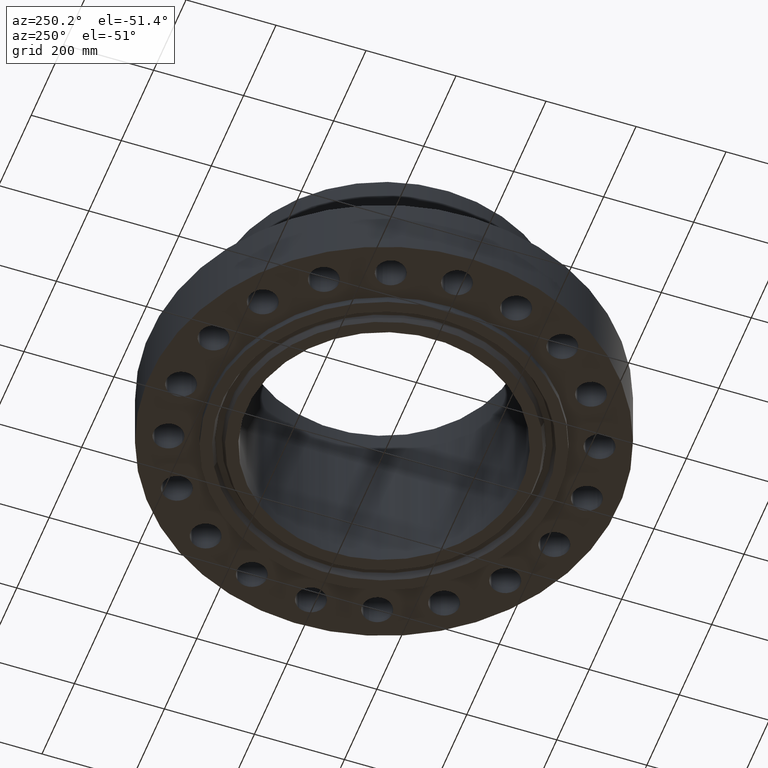
[diagram: clean part render]
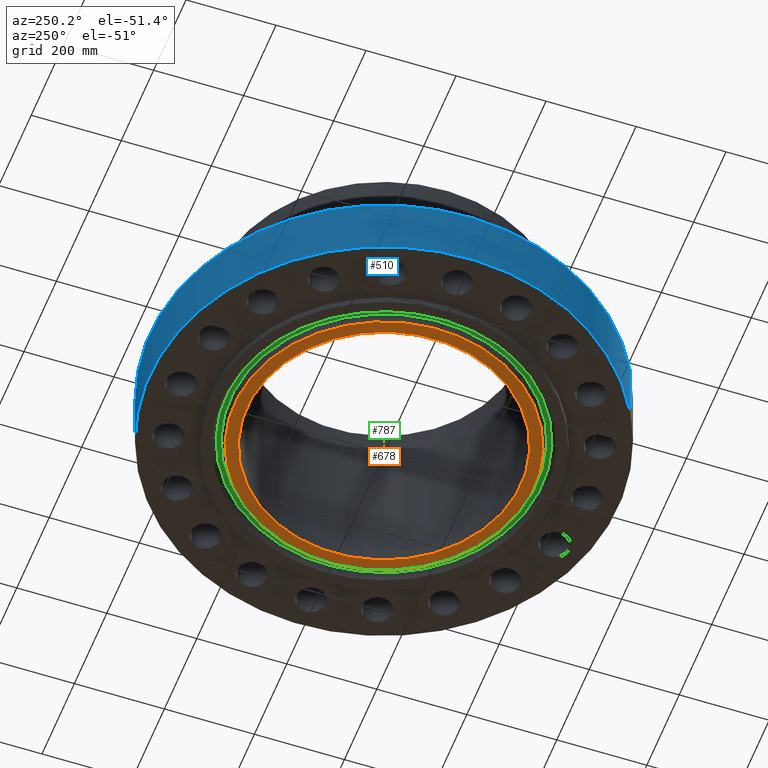
[diagram: same view with three faces highlighted in distinct colors, each labeled with its STEP entity id]
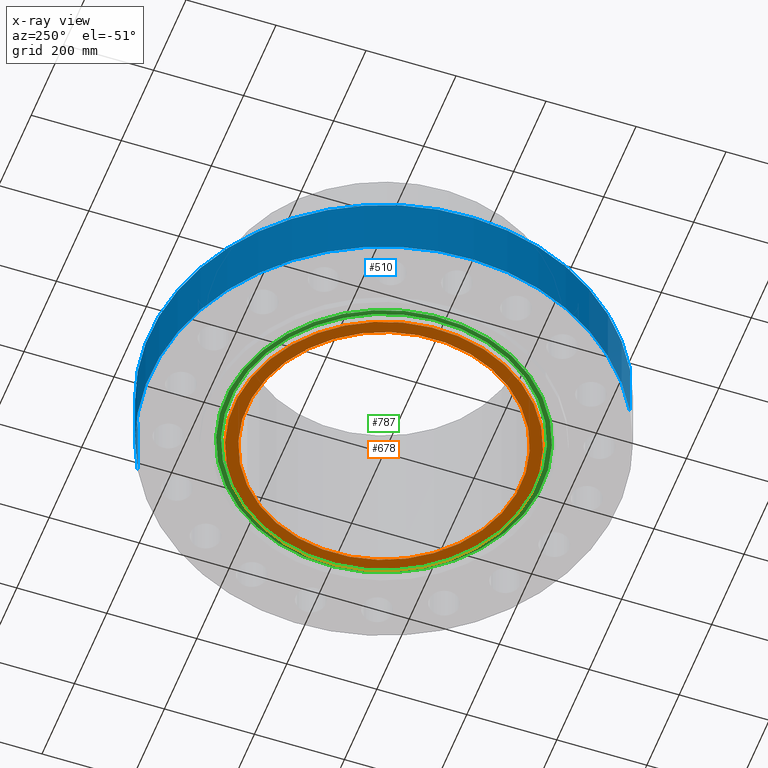
[diagram: x-ray of the same camera — body ghosted, the three highlighted faces saturated]
A machine part, auxiliary view with three faces highlighted in distinct colors.
The next image is the same camera in x-ray (body ghosted, the three faces saturated) — at least one of them is partly hidden behind the body in this view.
Their STEP definitions:

[orange] entity #678 — the highlighted planar face has unit normal (0, 0, -1).
#622=AXIS2_PLACEMENT_3D('Circle Axis2P3D',#620,#621,$) ;
#641=AXIS2_PLACEMENT_3D('Circle Axis2P3D',#639,#640,$) ;
#654=AXIS2_PLACEMENT_3D('Plane Axis2P3D',#651,#652,#653) ;
#658=AXIS2_PLACEMENT_3D('Circle Axis2P3D',#656,#657,$) ;
#667=AXIS2_PLACEMENT_3D('Circle Axis2P3D',#665,#666,$) ;
#617=CARTESIAN_POINT('Vertex',(5.75310646327,10.5309907427,-0.625000000002)) ;
#620=CARTESIAN_POINT('Axis2P3D Location',(0.,0.,-0.625000000002)) ;
#624=CARTESIAN_POINT('Vertex',(-5.75310646327,-10.5309907427,-0.625000000002)) ;
#639=CARTESIAN_POINT('Axis2P3D Location',(0.,0.,-0.625000000002)) ;
#651=CARTESIAN_POINT('Axis2P3D Location',(0.,12.,-0.625000000003)) ;
#656=CARTESIAN_POINT('Axis2P3D Location',(0.,0.,-0.625000000003)) ;
#660=CARTESIAN_POINT('Vertex',(-6.27735828974,-11.4906272742,-0.625000000003)) ;
#662=CARTESIAN_POINT('Vertex',(6.27735828974,11.4906272742,-0.625000000003)) ;
#665=CARTESIAN_POINT('Axis2P3D Location',(0.,0.,-0.625000000003)) ;
#621=DIRECTION('Axis2P3D Direction',(0.,0.,-0.0393700787402)) ;
#640=DIRECTION('Axis2P3D Direction',(0.,0.,-0.0393700787402)) ;
#652=DIRECTION('Axis2P3D Direction',(0.,0.,-0.0393700787402)) ;
#653=DIRECTION('Axis2P3D XDirection',(0.0393700787402,0.,0.)) ;
#657=DIRECTION('Axis2P3D Direction',(0.,0.,-0.0393700787402)) ;
#666=DIRECTION('Axis2P3D Direction',(0.,0.,-0.0393700787402)) ;
#671=ORIENTED_EDGE('',*,*,#664,.T.) ;
#672=ORIENTED_EDGE('',*,*,#669,.T.) ;
#675=ORIENTED_EDGE('',*,*,#626,.F.) ;
#676=ORIENTED_EDGE('',*,*,#643,.F.) ;
#677=FACE_BOUND('',#674,.T.) ;
#678=ADVANCED_FACE('PartBody',(#673,#677),#655,.T.) ;
#623=CIRCLE('generated circle',#622,12.) ;
#642=CIRCLE('generated circle',#641,12.) ;
#659=CIRCLE('generated circle',#658,13.0935000001) ;
#668=CIRCLE('generated circle',#667,13.0935000001) ;
#626=EDGE_CURVE('',#618,#625,#623,.T.) ;
#643=EDGE_CURVE('',#625,#618,#642,.T.) ;
#664=EDGE_CURVE('',#661,#663,#659,.T.) ;
#669=EDGE_CURVE('',#663,#661,#668,.T.) ;
#670=EDGE_LOOP('',(#671,#672)) ;
#674=EDGE_LOOP('',(#675,#676)) ;
#673=FACE_OUTER_BOUND('',#670,.T.) ;
#655=PLANE('',#654) ;
#618=VERTEX_POINT('',#617) ;
#625=VERTEX_POINT('',#624) ;
#661=VERTEX_POINT('',#660) ;
#663=VERTEX_POINT('',#662) ;

[blue] entity #510 — the highlighted cylindrical surface (partial cylindrical patch) has radius 520.7 mm, axis along (0, 0, -1).
#82=AXIS2_PLACEMENT_3D('Circle Axis2P3D',#80,#81,$) ;
#483=AXIS2_PLACEMENT_3D('Cylinder Axis2P3D',#480,#481,#482) ;
#494=AXIS2_PLACEMENT_3D('Circle Axis2P3D',#492,#493,$) ;
#80=CARTESIAN_POINT('Axis2P3D Location',(0.,0.,0.)) ;
#84=CARTESIAN_POINT('Vertex',(-9.82822354143,-17.9904425188,2.23792987641E-015)) ;
#86=CARTESIAN_POINT('Vertex',(9.82822354143,17.9904425188,2.23792987641E-015)) ;
#480=CARTESIAN_POINT('Axis2P3D Location',(0.,0.,7.56250000003)) ;
#485=CARTESIAN_POINT('Line Origine',(-9.82822354143,-17.9904425188,2.75000000001)) ;
#489=CARTESIAN_POINT('Vertex',(-9.82822354143,-17.9904425188,5.50000000002)) ;
#492=CARTESIAN_POINT('Axis2P3D Location',(0.,0.,5.50000000002)) ;
#496=CARTESIAN_POINT('Vertex',(9.82822354143,17.9904425188,5.50000000002)) ;
#499=CARTESIAN_POINT('Line Origine',(9.82822354143,17.9904425188,2.75000000001)) ;
#81=DIRECTION('Axis2P3D Direction',(0.,0.,-0.0393700787402)) ;
#481=DIRECTION('Axis2P3D Direction',(0.,0.,-0.0393700787402)) ;
#482=DIRECTION('Axis2P3D XDirection',(0.0188750212049,0.0345504945626,0.)) ;
#486=DIRECTION('Vector Direction',(0.,0.,-0.0393700787402)) ;
#493=DIRECTION('Axis2P3D Direction',(0.,0.,-0.0393700787402)) ;
#500=DIRECTION('Vector Direction',(0.,0.,-0.0393700787402)) ;
#487=VECTOR('Line Direction',#486,0.0393700787402) ;
#501=VECTOR('Line Direction',#500,0.0393700787402) ;
#505=ORIENTED_EDGE('',*,*,#88,.F.) ;
#506=ORIENTED_EDGE('',*,*,#491,.T.) ;
#507=ORIENTED_EDGE('',*,*,#498,.T.) ;
#508=ORIENTED_EDGE('',*,*,#503,.F.) ;
#510=ADVANCED_FACE('PartBody',(#509),#484,.T.) ;
#83=CIRCLE('generated circle',#82,20.5000000001) ;
#495=CIRCLE('generated circle',#494,20.5000000001) ;
#484=CYLINDRICAL_SURFACE('generated cylinder',#483,20.5000000001) ;
#88=EDGE_CURVE('',#85,#87,#83,.T.) ;
#491=EDGE_CURVE('',#85,#490,#488,.F.) ;
#498=EDGE_CURVE('',#490,#497,#495,.T.) ;
#503=EDGE_CURVE('',#87,#497,#502,.F.) ;
#504=EDGE_LOOP('',(#505,#506,#507,#508)) ;
#509=FACE_OUTER_BOUND('',#504,.T.) ;
#488=LINE('Line',#485,#487) ;
#502=LINE('Line',#499,#501) ;
#85=VERTEX_POINT('',#84) ;
#87=VERTEX_POINT('',#86) ;
#490=VERTEX_POINT('',#489) ;
#497=VERTEX_POINT('',#496) ;

[green] entity #787 — the highlighted planar face has unit normal (0, 0, -1).
#78=AXIS2_PLACEMENT_3D('Plane Axis2P3D',#75,#76,#77) ;
#736=AXIS2_PLACEMENT_3D('Circle Axis2P3D',#734,#735,$) ;
#755=AXIS2_PLACEMENT_3D('Circle Axis2P3D',#753,#754,$) ;
#767=AXIS2_PLACEMENT_3D('Circle Axis2P3D',#765,#766,$) ;
#776=AXIS2_PLACEMENT_3D('Circle Axis2P3D',#774,#775,$) ;
#75=CARTESIAN_POINT('Axis2P3D Location',(0.,13.4210140029,0.)) ;
#731=CARTESIAN_POINT('Vertex',(-6.43437686697,-11.7780478519,7.34320740697E-016)) ;
#734=CARTESIAN_POINT('Axis2P3D Location',(0.,0.,7.34320740697E-016)) ;
#738=CARTESIAN_POINT('Vertex',(6.43437686697,11.7780478519,7.34320740697E-016)) ;
#753=CARTESIAN_POINT('Axis2P3D Location',(0.,0.,7.34320740697E-016)) ;
#765=CARTESIAN_POINT('Axis2P3D Location',(0.,0.,0.)) ;
#769=CARTESIAN_POINT('Vertex',(-6.62996906004,-12.1360769597,3.49676543189E-016)) ;
#771=CARTESIAN_POINT('Vertex',(6.62996906004,12.1360769597,3.49676543189E-016)) ;
#774=CARTESIAN_POINT('Axis2P3D Location',(0.,0.,0.)) ;
#76=DIRECTION('Axis2P3D Direction',(0.,0.,-0.0393700787402)) ;
#77=DIRECTION('Axis2P3D XDirection',(0.0393700787402,0.,0.)) ;
#735=DIRECTION('Axis2P3D Direction',(0.,0.,-0.0393700787402)) ;
#754=DIRECTION('Axis2P3D Direction',(0.,0.,-0.0393700787402)) ;
#766=DIRECTION('Axis2P3D Direction',(0.,0.,-0.0393700787402)) ;
#775=DIRECTION('Axis2P3D Direction',(0.,0.,-0.0393700787402)) ;
#780=ORIENTED_EDGE('',*,*,#773,.T.) ;
#781=ORIENTED_EDGE('',*,*,#778,.T.) ;
#784=ORIENTED_EDGE('',*,*,#757,.F.) ;
#785=ORIENTED_EDGE('',*,*,#740,.F.) ;
#786=FACE_BOUND('',#783,.T.) ;
#787=ADVANCED_FACE('PartBody',(#782,#786),#79,.T.) ;
#737=CIRCLE('generated circle',#736,13.4210140029) ;
#756=CIRCLE('generated circle',#755,13.4210140029) ;
#768=CIRCLE('generated circle',#767,13.8289859972) ;
#777=CIRCLE('generated circle',#776,13.8289859972) ;
#740=EDGE_CURVE('',#732,#739,#737,.T.) ;
#757=EDGE_CURVE('',#739,#732,#756,.T.) ;
#773=EDGE_CURVE('',#770,#772,#768,.T.) ;
#778=EDGE_CURVE('',#772,#770,#777,.T.) ;
#779=EDGE_LOOP('',(#780,#781)) ;
#783=EDGE_LOOP('',(#784,#785)) ;
#782=FACE_OUTER_BOUND('',#779,.T.) ;
#79=PLANE('',#78) ;
#732=VERTEX_POINT('',#731) ;
#739=VERTEX_POINT('',#738) ;
#770=VERTEX_POINT('',#769) ;
#772=VERTEX_POINT('',#771) ;